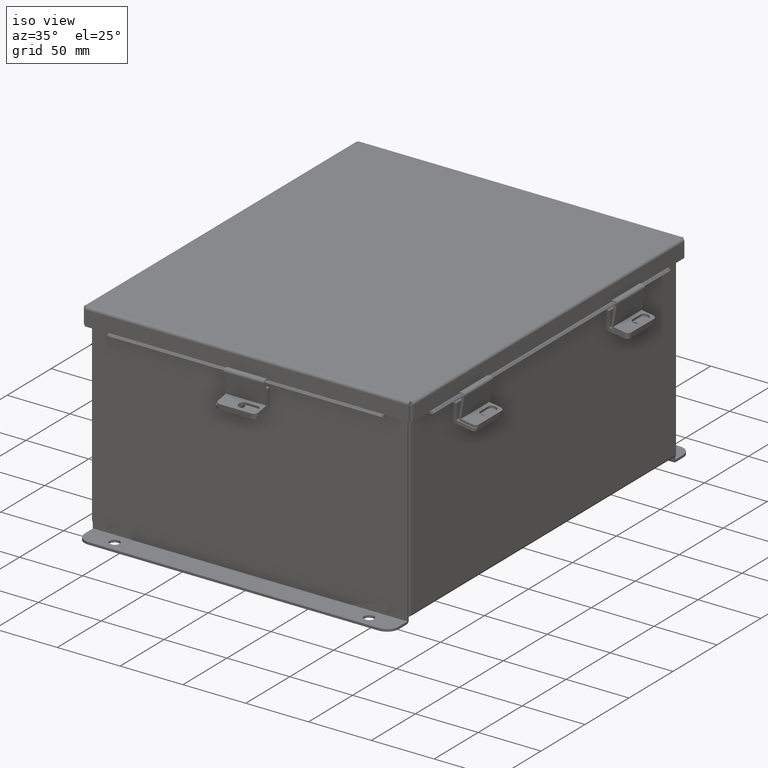
[diagram: clean part render]
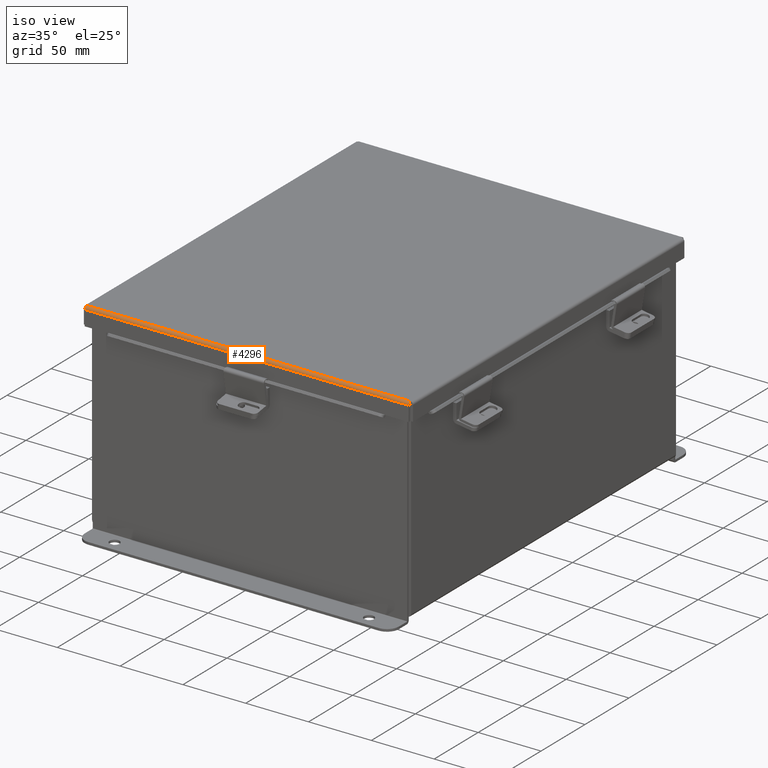
[diagram: same view with one face highlighted and labeled with its STEP entity id]
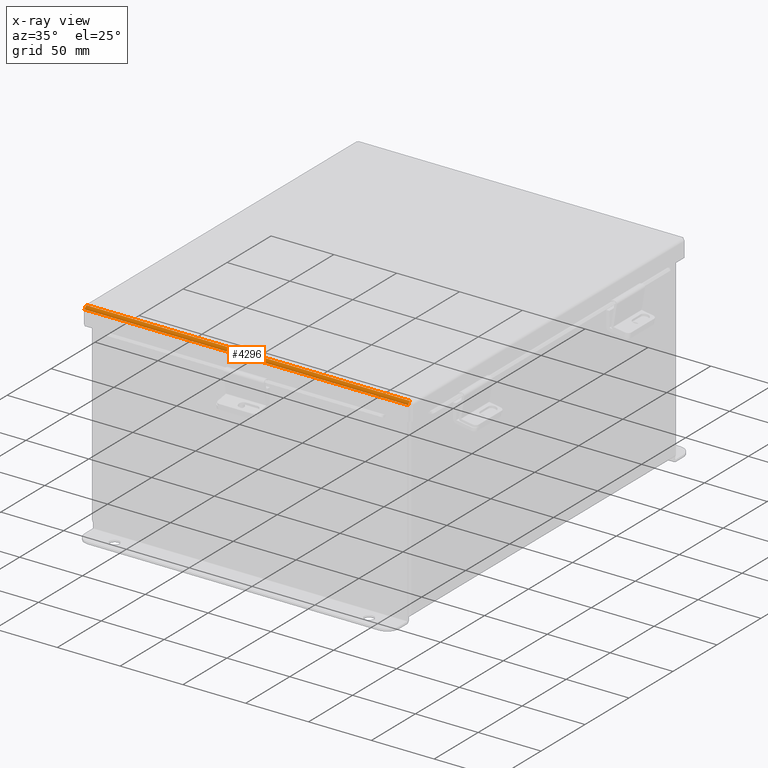
[diagram: x-ray of the same camera — body ghosted, the highlighted face saturated]
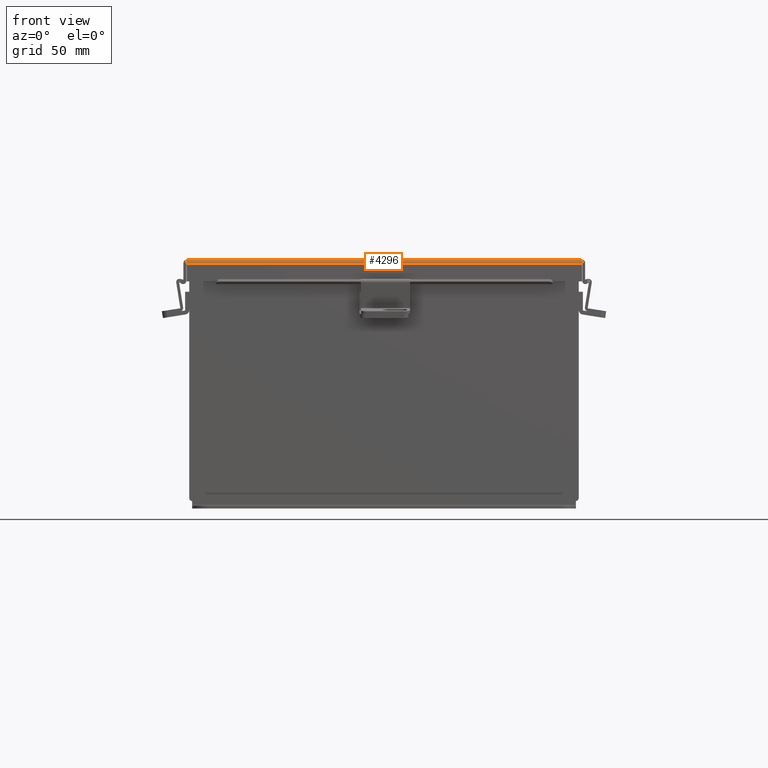
[diagram: same view with one face highlighted and labeled with its STEP entity id]
A machine part, iso view. The second image highlights one B-rep face of the part: STEP entity #4296.
The next image is the same camera in x-ray: the body ghosted, the highlighted face saturated — about 0% of this face is hidden behind the body in this view.
A second angle (front view) of the same face is appended — the face is thin or edge-on in the first view.
In plain terms, the highlighted cylindrical surface (edge-blend (fillet) strip) has radius 2.2276 mm, axis along (-1, 0, -0).
Its self-contained STEP definition (entity closure, byte-faithful):
#221 = CARTESIAN_POINT ( 'NONE',  ( 5.072008543776431300, -6.138680782078311400, -0.04089574734180036900 ) ) ;
#434 = EDGE_CURVE ( 'NONE', #3079, #3414, #3517, .T. ) ;
#957 = CARTESIAN_POINT ( 'NONE',  ( 5.070526310729397000, -6.112717384578519200, -0.06363106625866872500 ) ) ;
#1260 = ORIENTED_EDGE ( 'NONE', *, *, #4231, .F. ) ;
#1293 = CARTESIAN_POINT ( 'NONE',  ( -5.070526310729394300, -6.112717384578517400, -0.06363106625866872500 ) ) ;
#1536 = DIRECTION ( 'NONE',  ( 0.0000000000000000000, -1.000000000000000000, -4.477801015840783100E-015 ) ) ;
#1720 = CARTESIAN_POINT ( 'NONE',  ( 5.069044077682363500, -6.080029903154983400, -0.07470000000000032200 ) ) ;
#1925 = CYLINDRICAL_SURFACE ( 'NONE', #5674, 0.08770000000000026400 ) ;
#1940 = CARTESIAN_POINT ( 'NONE',  ( -5.156250000000016000, -6.156249999999990200, 0.01300000000000010700 ) ) ;
#2409 = CARTESIAN_POINT ( 'NONE',  ( 5.074478932188155200, -6.068549999999990300, 0.01300000000000010700 ) ) ;
#3071 = DIRECTION ( 'NONE',  ( -1.000000000000000000, -3.191323508412550700E-030, -0.0000000000000000000 ) ) ;
#3079 = VERTEX_POINT ( 'NONE', #7754 ) ;
#3182 = CARTESIAN_POINT ( 'NONE',  ( 5.073984854505810400, -6.156249999999991100, 0.001520096845006989800 ) ) ;
#3306 = CARTESIAN_POINT ( 'NONE',  ( -5.068550000000016100, -6.068549999999990300, -0.07470000000000015500 ) ) ;
#3393 = VECTOR ( 'NONE', #3071, 39.37007874015748100 ) ;
#3414 = VERTEX_POINT ( 'NONE', #6089 ) ;
#3517 = LINE ( 'NONE', #1940, #3393 ) ;
#3665 = CARTESIAN_POINT ( 'NONE',  ( -5.073490776823461200, -6.153967403743799000, -0.009955289458309181400 ) ) ;
#3672 = EDGE_LOOP ( 'NONE', ( #1260, #5627, #9143, #7747 ) ) ;
#3968 = CARTESIAN_POINT ( 'NONE',  ( -5.068550000000016100, -6.068549999999990300, -0.07470000000000015500 ) ) ;
#4231 = EDGE_CURVE ( 'NONE', #5228, #6754, #8002, .T. ) ;
#4296 = ADVANCED_FACE ( 'NONE', ( #8826 ), #1925, .T. ) ;
#4489 = CARTESIAN_POINT ( 'NONE',  ( -5.072008543776428600, -6.138680782078308700, -0.04089574734180037600 ) ) ;
#4539 = EDGE_CURVE ( 'NONE', #6754, #3414, #9538, .T. ) ;
#4647 = CARTESIAN_POINT ( 'NONE',  ( 5.072502621458774300, -6.145181066258656300, -0.03116738457852819700 ) ) ;
#4848 = CARTESIAN_POINT ( 'NONE',  ( 5.068550000000017900, -6.068549999999990300, -0.07470000000000015500 ) ) ;
#5228 = VERTEX_POINT ( 'NONE', #4848 ) ;
#5392 = CARTESIAN_POINT ( 'NONE',  ( 5.074478932188155200, -6.156249999999990200, 0.01299999999999901400 ) ) ;
#5421 = CARTESIAN_POINT ( 'NONE',  ( 5.071020388411742600, -6.122445747341791000, -0.05713078207832072300 ) ) ;
#5562 = CARTESIAN_POINT ( 'NONE',  ( -5.072502621458773400, -6.145181066258658100, -0.03116738457852820400 ) ) ;
#5605 = CARTESIAN_POINT ( 'NONE',  ( 5.074478932188155200, -6.068549999999990300, -0.07470000000000015500 ) ) ;
#5627 = ORIENTED_EDGE ( 'NONE', *, *, #8022, .F. ) ;
#5674 = AXIS2_PLACEMENT_3D ( 'NONE', #2409, #9269, #1536 ) ;
#6089 = CARTESIAN_POINT ( 'NONE',  ( -5.074478932188150700, -6.156249999999990200, 0.01300000000000010700 ) ) ;
#6101 = CARTESIAN_POINT ( 'NONE',  ( -5.074478932188150700, -6.156249999999990200, 0.01300000000000010700 ) ) ;
#6183 = DIRECTION ( 'NONE',  ( -1.000000000000000000, -3.215975411700707400E-030, -0.0000000000000000000 ) ) ;
#6193 = CARTESIAN_POINT ( 'NONE',  ( 5.069538155364706500, -6.091505289458300600, -0.07241740374381157300 ) ) ;
#6299 = CARTESIAN_POINT ( 'NONE',  ( -5.069044077682360000, -6.080029903154983400, -0.07470000000000029400 ) ) ;
#6367 = B_SPLINE_CURVE_WITH_KNOTS ( 'NONE', 3,
 ( #5392, #3182, #9185, #4647, #221, #5421, #957, #6193, #1720, #6930 ),
 .UNSPECIFIED., .F., .F.,
 ( 4, 2, 2, 2, 4 ),
 ( 0.0000000000000000000, 0.2500000000000000000, 0.5000000000000000000, 0.7500000000000000000, 1.000000000000000000 ),
 .UNSPECIFIED. ) ;
#6754 = VERTEX_POINT ( 'NONE', #3968 ) ;
#6930 = CARTESIAN_POINT ( 'NONE',  ( 5.068550000000017900, -6.068549999999990300, -0.07470000000000015500 ) ) ;
#7737 = CARTESIAN_POINT ( 'NONE',  ( -5.073984854505806800, -6.156249999999989300, 0.001520096845006991800 ) ) ;
#7747 = ORIENTED_EDGE ( 'NONE', *, *, #4539, .F. ) ;
#7754 = CARTESIAN_POINT ( 'NONE',  ( 5.074478932188155200, -6.156249999999990200, 0.01299999999999901400 ) ) ;
#8002 = LINE ( 'NONE', #5605, #8252 ) ;
#8022 = EDGE_CURVE ( 'NONE', #3079, #5228, #6367, .T. ) ;
#8252 = VECTOR ( 'NONE', #6183, 39.37007874015748100 ) ;
#8265 = CARTESIAN_POINT ( 'NONE',  ( -5.069538155364705600, -6.091505289458300600, -0.07241740374381158700 ) ) ;
#8826 = FACE_OUTER_BOUND ( 'NONE', #3672, .T. ) ;
#9143 = ORIENTED_EDGE ( 'NONE', *, *, #434, .T. ) ;
#9185 = CARTESIAN_POINT ( 'NONE',  ( 5.073490776823466500, -6.153967403743801700, -0.009955289458309190100 ) ) ;
#9269 = DIRECTION ( 'NONE',  ( 1.000000000000000000, 3.215975411700707400E-030, 0.0000000000000000000 ) ) ;
#9538 = B_SPLINE_CURVE_WITH_KNOTS ( 'NONE', 3,
 ( #3306, #6299, #8265, #1293, #9590, #4489, #5562, #3665, #7737, #6101 ),
 .UNSPECIFIED., .F., .F.,
 ( 4, 2, 2, 2, 4 ),
 ( 0.0000000000000000000, 0.2500000000000000000, 0.5000000000000000000, 0.7500000000000000000, 1.000000000000000000 ),
 .UNSPECIFIED. ) ;
#9590 = CARTESIAN_POINT ( 'NONE',  ( -5.071020388411738200, -6.122445747341791000, -0.05713078207832072300 ) ) ;